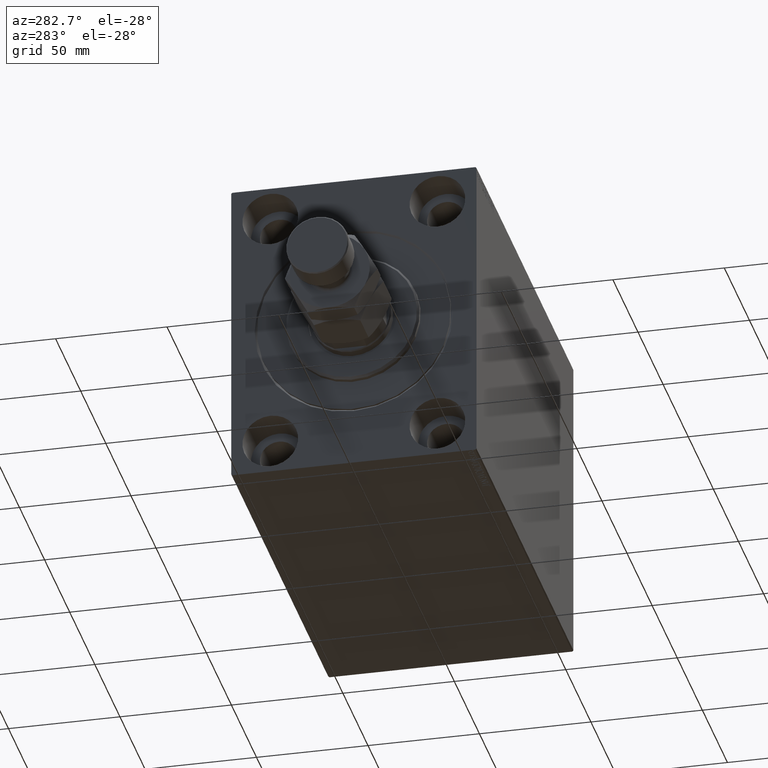
[diagram: clean part render]
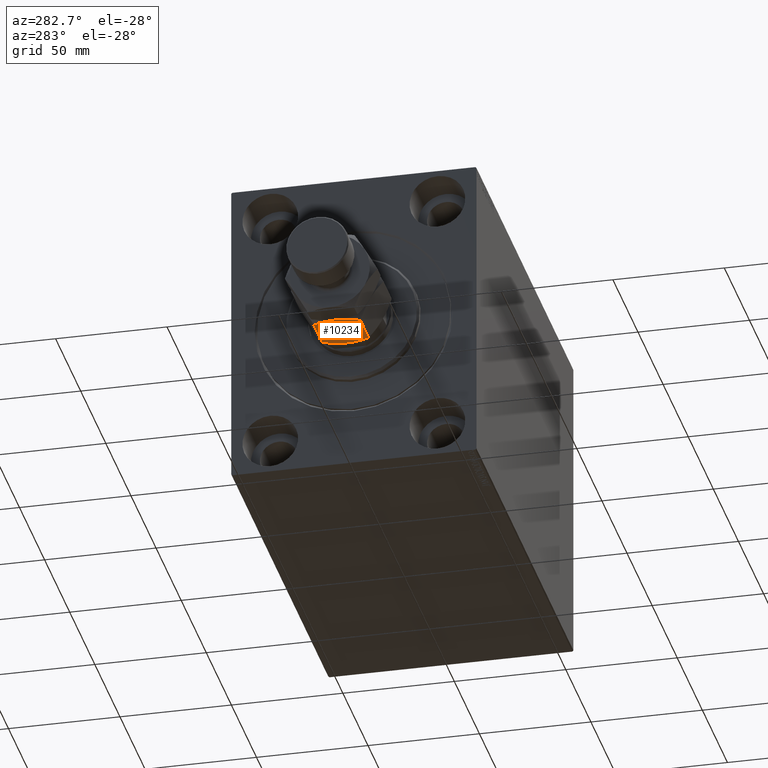
[diagram: same view with one face highlighted and labeled with its STEP entity id]
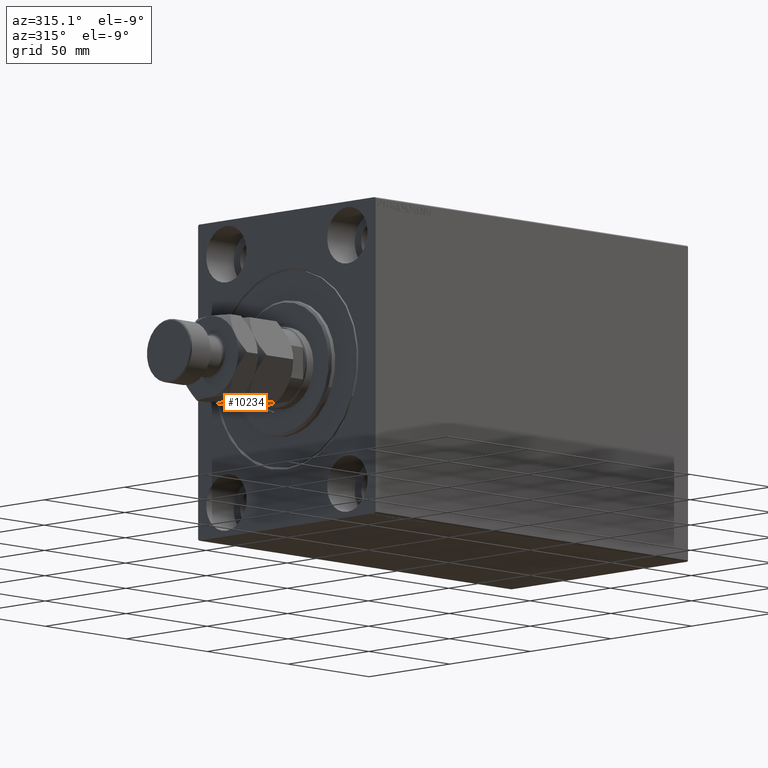
[diagram: same view with one face highlighted and labeled with its STEP entity id]
A machine part, auxiliary view. The second image highlights one B-rep face of the part: STEP entity #10234.
A second angle (auxiliary view) of the same face is appended — the face is thin or edge-on in the first view.
In plain terms, the highlighted planar face has unit normal (0, 0, 1).
Its self-contained STEP definition (entity closure, byte-faithful):
#1230 = CARTESIAN_POINT ( 'NONE',  ( -18.00000000000000000, 10.39230484541327293, 19.21539030917347546 ) ) ;
#2095 = VERTEX_POINT ( 'NONE', #31882 ) ;
#2139 = CARTESIAN_POINT ( 'NONE',  ( -18.00000000000000000, 8.763088818352416709, 19.99514569897121774 ) ) ;
#2292 = CARTESIAN_POINT ( 'NONE',  ( -18.00000000000000000, 0.000000000000000000, 0.000000000000000000 ) ) ;
#2436 = VERTEX_POINT ( 'NONE', #45206 ) ;
#2937 = FACE_OUTER_BOUND ( 'NONE', #5720, .T. ) ;
#3239 = EDGE_CURVE ( 'NONE', #31610, #41756, #7049, .T. ) ;
#3284 = CARTESIAN_POINT ( 'NONE',  ( -18.00000000000000355, 0.4570166227920097191, -1.873996868329094797E-14 ) ) ;
#3420 = CARTESIAN_POINT ( 'NONE',  ( -18.00000000000000000, -9.585844502997481698, 19.61862048038136308 ) ) ;
#4099 = DIRECTION ( 'NONE',  ( -0.000000000000000000, -0.000000000000000000, -1.000000000000000000 ) ) ;
#5720 = EDGE_LOOP ( 'NONE', ( #22430, #14887, #34664, #15182, #45071, #15628 ) ) ;
#6880 = CARTESIAN_POINT ( 'NONE',  ( -18.00000000000000355, -0.4570166227920087199, 22.00000000000001421 ) ) ;
#7049 = B_SPLINE_CURVE_WITH_KNOTS ( 'NONE', 3,
 ( #14011, #6880, #42757, #25276, #28278, #10777, #39085, #20915, #24830, #38864, #3420, #31509 ),
 .UNSPECIFIED., .F., .F.,
 ( 4, 2, 2, 2, 2, 4 ),
 ( 0.03866324973303091050, 0.04001676336829057545, 0.04137027700355024040, 0.04407730427406957724, 0.04678433154458891408, 0.04949135881510824397 ),
 .UNSPECIFIED. ) ;
#8557 = CARTESIAN_POINT ( 'NONE',  ( -17.99999999999999645, 0.9155406990339314266, 0.01761543672925007520 ) ) ;
#8822 = CARTESIAN_POINT ( 'NONE',  ( -17.99999999999999289, 7.496347219517978999, 20.50523559702920195 ) ) ;
#9041 = CARTESIAN_POINT ( 'NONE',  ( -18.00000000000000000, -10.39230484541326582, 19.21539030917347901 ) ) ;
#10234 = ADVANCED_FACE ( 'NONE', ( #2937 ), #16973, .F. ) ;
#10567 = LINE ( 'NONE', #24625, #17936 ) ;
#10777 = CARTESIAN_POINT ( 'NONE',  ( -18.00000000000000355, -3.606660380382266329, 21.66338348051975871 ) ) ;
#11189 = EDGE_CURVE ( 'NONE', #2095, #2436, #14454, .T. ) ;
#13362 = EDGE_CURVE ( 'NONE', #29387, #2436, #20103, .T. ) ;
#14011 = CARTESIAN_POINT ( 'NONE',  ( -17.99999999999999645, 0.000000000000000000, 22.00000000000000000 ) ) ;
#14373 = VERTEX_POINT ( 'NONE', #32677 ) ;
#14454 = LINE ( 'NONE', #39310, #25449 ) ;
#14887 = ORIENTED_EDGE ( 'NONE', *, *, #17268, .F. ) ;
#15182 = ORIENTED_EDGE ( 'NONE', *, *, #41765, .F. ) ;
#15270 = CARTESIAN_POINT ( 'NONE',  ( -18.00000000000000355, 3.606961701950826438, 21.71780071720124283 ) ) ;
#15628 = ORIENTED_EDGE ( 'NONE', *, *, #13362, .F. ) ;
#16093 = CARTESIAN_POINT ( 'NONE',  ( -17.99999999999999645, -7.496347219517973670, 1.494764402970788497 ) ) ;
#16173 = CARTESIAN_POINT ( 'NONE',  ( -18.00000000000000000, 9.585738860786747750, 19.61867330148673716 ) ) ;
#16973 = PLANE ( 'NONE',  #17326 ) ;
#17268 = EDGE_CURVE ( 'NONE', #41756, #14373, #10567, .T. ) ;
#17326 = AXIS2_PLACEMENT_3D ( 'NONE', #34482, #23889, #30566 ) ;
#17936 = VECTOR ( 'NONE', #38661, 1000.000000000000000 ) ;
#18229 = CARTESIAN_POINT ( 'NONE',  ( -18.00000000000000000, 0.000000000000000000, 0.000000000000000000 ) ) ;
#19041 = B_SPLINE_CURVE_WITH_KNOTS ( 'NONE', 3,
 ( #1230, #16173, #2139, #8822, #26536, #22856, #32999, #15270, #39893, #29760 ),
 .UNSPECIFIED., .F., .F.,
 ( 4, 2, 2, 2, 4 ),
 ( 0.02782233635826646123, 0.03053256470195757355, 0.03188767887380312971, 0.03324279304564868587, 0.03866324973303091050 ),
 .UNSPECIFIED. ) ;
#19777 = CARTESIAN_POINT ( 'NONE',  ( -18.00000000000000000, -10.39230484541326582, 2.784609690826517436 ) ) ;
#20009 = CARTESIAN_POINT ( 'NONE',  ( -18.00000000000000000, -7.068075135443438128, 1.333788718270820350 ) ) ;
#20103 = B_SPLINE_CURVE_WITH_KNOTS ( 'NONE', 3,
 ( #18229, #3284, #8557, #26491, #39631, #39851, #25821, #36414, #29718, #29041, #22142, #33401 ),
 .UNSPECIFIED., .F., .F.,
 ( 4, 2, 2, 2, 2, 4 ),
 ( 0.03866324973303089663, 0.04001676336829056158, 0.04137027700355023346, 0.04407730427406956336, 0.04678433154458890020, 0.04949135881510823010 ),
 .UNSPECIFIED. ) ;
#20915 = CARTESIAN_POINT ( 'NONE',  ( -18.00000000000000711, -6.216134505391694098, 20.97498393630432645 ) ) ;
#22142 = CARTESIAN_POINT ( 'NONE',  ( -18.00000000000000000, 9.585844502997485250, 2.381379519618630702 ) ) ;
#22430 = ORIENTED_EDGE ( 'NONE', *, *, #27721, .F. ) ;
#22856 = CARTESIAN_POINT ( 'NONE',  ( -18.00000000000000711, 6.209292796908482792, 20.96337695072463703 ) ) ;
#23471 = CARTESIAN_POINT ( 'NONE',  ( -18.00000000000000000, -3.606961701950821109, 0.2821992827987603869 ) ) ;
#23889 = DIRECTION ( 'NONE',  ( 1.000000000000000000, 0.000000000000000000, -0.000000000000000000 ) ) ;
#23925 = CARTESIAN_POINT ( 'NONE',  ( -18.00000000000000000, -9.585738860786737092, 2.381326698513256179 ) ) ;
#24625 = CARTESIAN_POINT ( 'NONE',  ( -18.00000000000000000, -10.39230484541326582, 22.00000000000000000 ) ) ;
#24830 = CARTESIAN_POINT ( 'NONE',  ( -18.00000000000000000, -7.070713019734865767, 20.67653729751676650 ) ) ;
#25276 = CARTESIAN_POINT ( 'NONE',  ( -18.00000000000000000, -1.820915739938815392, 21.91376254202566543 ) ) ;
#25449 = VECTOR ( 'NONE', #4099, 1000.000000000000000 ) ;
#25821 = CARTESIAN_POINT ( 'NONE',  ( -18.00000000000000355, 4.484118396622230662, 0.5315467738039389989 ) ) ;
#26491 = CARTESIAN_POINT ( 'NONE',  ( -17.99999999999999645, 1.820915739938816502, 0.08623745797432426363 ) ) ;
#26536 = CARTESIAN_POINT ( 'NONE',  ( -17.99999999999999645, 7.068075135443441681, 20.66621128172916499 ) ) ;
#27344 = B_SPLINE_CURVE_WITH_KNOTS ( 'NONE', 3,
 ( #19777, #23925, #41412, #16093, #20009, #45092, #44871, #23471, #40721, #2292 ),
 .UNSPECIFIED., .F., .F.,
 ( 4, 2, 2, 2, 4 ),
 ( 0.02782233635826646123, 0.03053256470195757008, 0.03188767887380312277, 0.03324279304564867893, 0.03866324973303089663 ),
 .UNSPECIFIED. ) ;
#27721 = EDGE_CURVE ( 'NONE', #14373, #29387, #27344, .T. ) ;
#28278 = CARTESIAN_POINT ( 'NONE',  ( -18.00000000000000000, -2.269920501599952622, 21.86278919860200531 ) ) ;
#29041 = CARTESIAN_POINT ( 'NONE',  ( -18.00000000000000355, 8.761367480501975891, 2.004069294401323198 ) ) ;
#29387 = VERTEX_POINT ( 'NONE', #29456 ) ;
#29456 = CARTESIAN_POINT ( 'NONE',  ( -18.00000000000000000, 0.000000000000000000, 0.000000000000000000 ) ) ;
#29718 = CARTESIAN_POINT ( 'NONE',  ( -17.99999999999999645, 7.070713019734868432, 1.323462702483232833 ) ) ;
#29760 = CARTESIAN_POINT ( 'NONE',  ( -17.99999999999999645, 0.000000000000000000, 22.00000000000000000 ) ) ;
#30566 = DIRECTION ( 'NONE',  ( -0.000000000000000000, 0.000000000000000000, -1.000000000000000000 ) ) ;
#31509 = CARTESIAN_POINT ( 'NONE',  ( -18.00000000000000000, -10.39230484541326582, 19.21539030917347901 ) ) ;
#31610 = VERTEX_POINT ( 'NONE', #44359 ) ;
#31882 = CARTESIAN_POINT ( 'NONE',  ( -18.00000000000000000, 10.39230484541327293, 19.21539030917347546 ) ) ;
#32677 = CARTESIAN_POINT ( 'NONE',  ( -18.00000000000000000, -10.39230484541326582, 2.784609690826517436 ) ) ;
#32999 = CARTESIAN_POINT ( 'NONE',  ( -17.99999999999999645, 5.777644679957247398, 21.10005375890244039 ) ) ;
#33401 = CARTESIAN_POINT ( 'NONE',  ( -18.00000000000000000, 10.39230484541327115, 2.784609690826521433 ) ) ;
#34482 = CARTESIAN_POINT ( 'NONE',  ( -18.00000000000000000, 10.39230484541327293, 22.00000000000000000 ) ) ;
#34664 = ORIENTED_EDGE ( 'NONE', *, *, #3239, .F. ) ;
#36414 = CARTESIAN_POINT ( 'NONE',  ( -18.00000000000000000, 6.216134505391694098, 1.025016063695673774 ) ) ;
#38661 = DIRECTION ( 'NONE',  ( -0.000000000000000000, -0.000000000000000000, -1.000000000000000000 ) ) ;
#38864 = CARTESIAN_POINT ( 'NONE',  ( -18.00000000000000355, -8.761367480501970562, 19.99593070559867414 ) ) ;
#39085 = CARTESIAN_POINT ( 'NONE',  ( -18.00000000000000000, -4.484118396622227110, 21.46845322619605767 ) ) ;
#39310 = CARTESIAN_POINT ( 'NONE',  ( -18.00000000000000000, 10.39230484541327293, 22.00000000000000000 ) ) ;
#39631 = CARTESIAN_POINT ( 'NONE',  ( -18.00000000000000000, 2.269920501599953511, 0.1372108013979898844 ) ) ;
#39851 = CARTESIAN_POINT ( 'NONE',  ( -18.00000000000000711, 3.606660380382270326, 0.3366165194802389071 ) ) ;
#39893 = CARTESIAN_POINT ( 'NONE',  ( -18.00000000000000355, 1.830228188859417182, 22.00000000000001776 ) ) ;
#40721 = CARTESIAN_POINT ( 'NONE',  ( -18.00000000000000355, -1.830228188859414518, -1.798420353610330795E-14 ) ) ;
#41412 = CARTESIAN_POINT ( 'NONE',  ( -18.00000000000000000, -8.763088818352413156, 2.004854301028774266 ) ) ;
#41756 = VERTEX_POINT ( 'NONE', #9041 ) ;
#41765 = EDGE_CURVE ( 'NONE', #2095, #31610, #19041, .T. ) ;
#42757 = CARTESIAN_POINT ( 'NONE',  ( -18.00000000000000000, -0.9155406990339308715, 21.98238456327074530 ) ) ;
#44359 = CARTESIAN_POINT ( 'NONE',  ( -17.99999999999999645, 0.000000000000000000, 22.00000000000000000 ) ) ;
#44871 = CARTESIAN_POINT ( 'NONE',  ( -18.00000000000000355, -5.777644679957243845, 0.8999462410975485049 ) ) ;
#45071 = ORIENTED_EDGE ( 'NONE', *, *, #11189, .T. ) ;
#45092 = CARTESIAN_POINT ( 'NONE',  ( -18.00000000000000000, -6.209292796908479239, 1.036623049275358754 ) ) ;
#45206 = CARTESIAN_POINT ( 'NONE',  ( -18.00000000000000000, 10.39230484541327115, 2.784609690826521433 ) ) ;